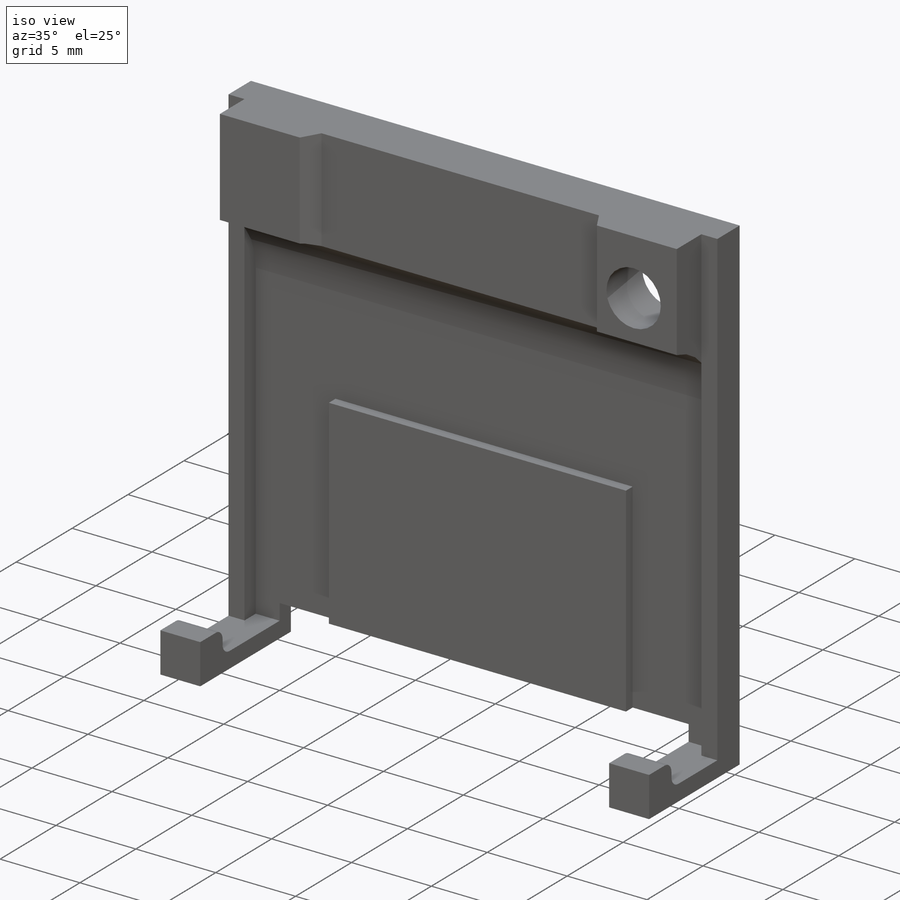
[diagram: iso view]
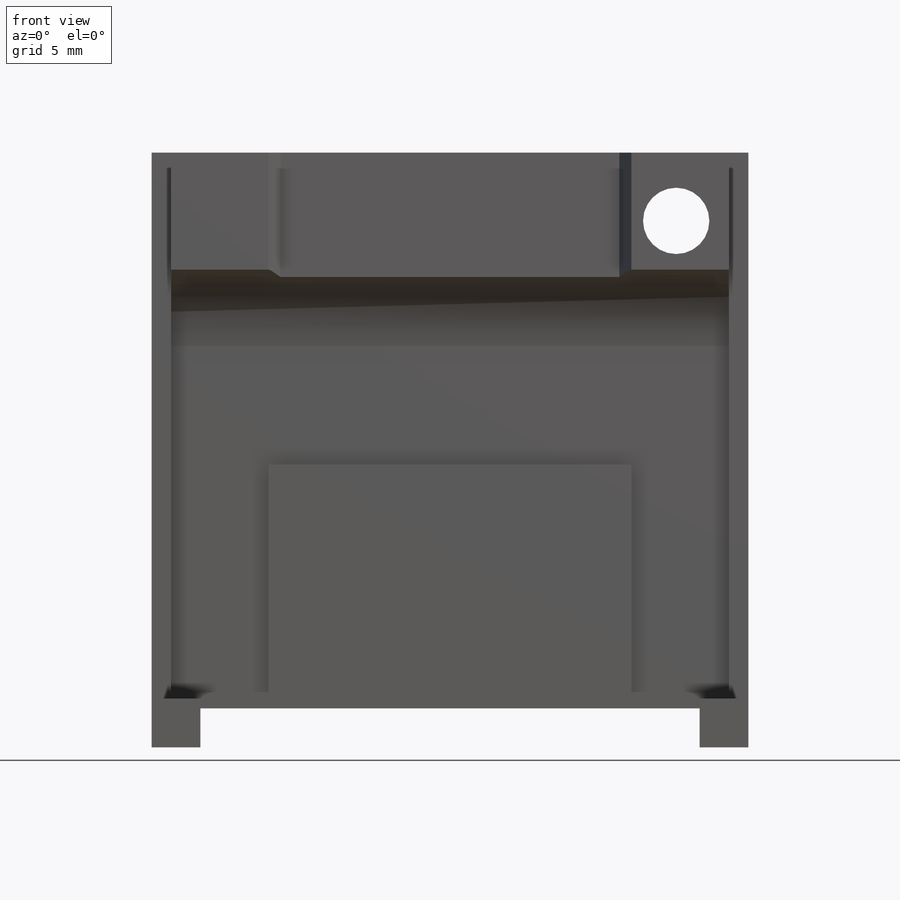
[diagram: front view]
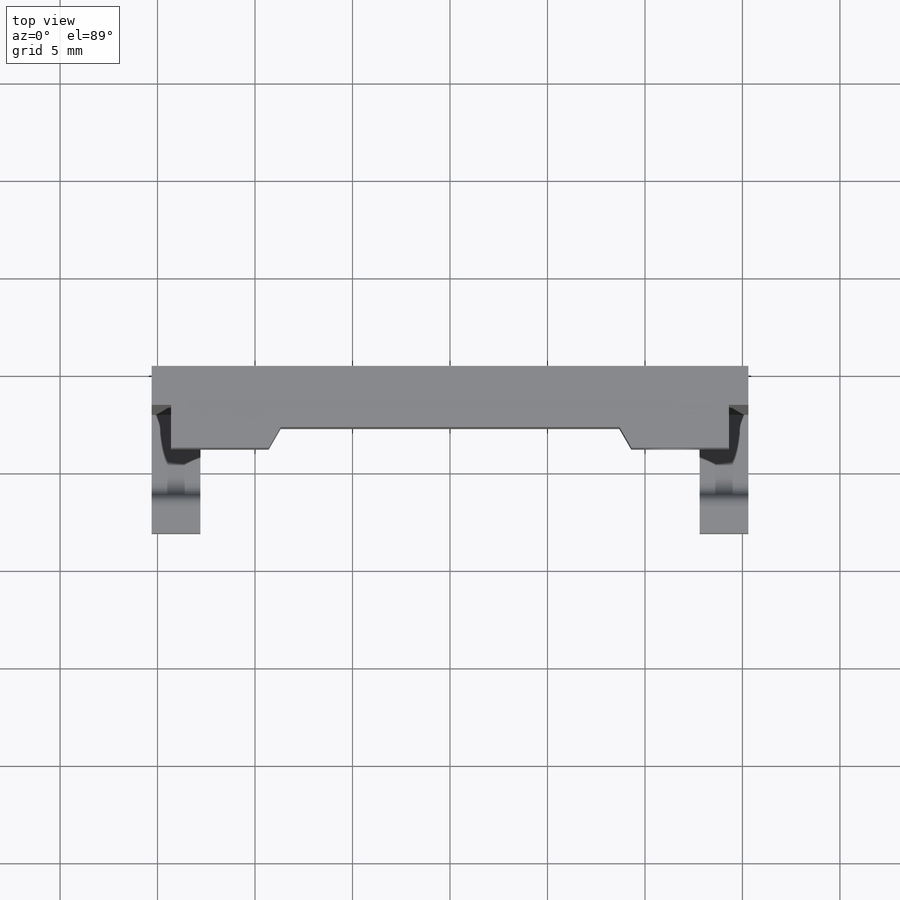
[diagram: top view]
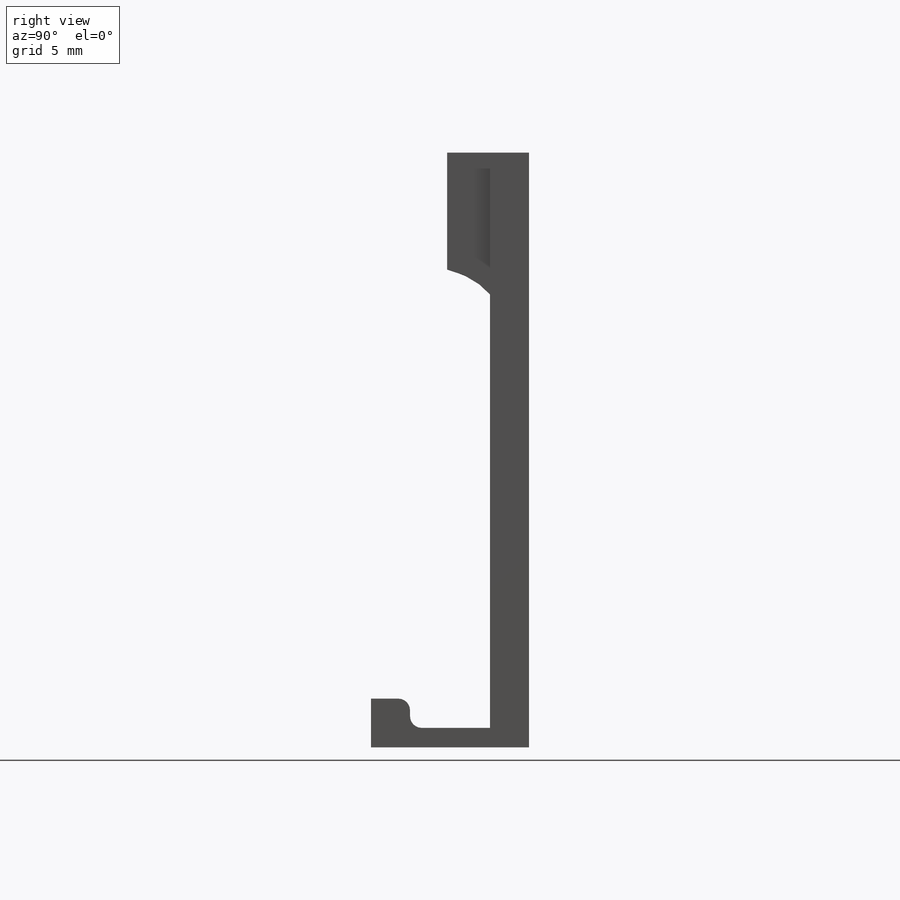
[diagram: right view]
SOLIDWORKS PART (.sldprt)
format: sldprt  version: not decoded by parser v0  size: 342,016 bytes
history: native  units: mm
features: sketch x10, extrude x8, plane x3, cut_extrude x2, fillet x2, material x1, chamfer x1 (+9 scaffold rows collapsed)
feature tree (36):
  scaffold x9  (default folders/planes/origin — collapsed)
  material  "Matériau <non spécifié>"
  plane  "Plan de face"
  plane  "Plan de dessus"
  plane  "Plan de droite"
  sketch  "Esquisse1"  dims[D1=28.6mm D2=16.5mm]
  extrude  "Boss.-Extru.1"  Depth=1mm
  sketch  "Esquisse2"  dims[c1.D1=20.0mm c1.D2=4.0mm c1.D3=~14.464833mm c2.D1=5.0mm]
  extrude  "Boss.-Extru.2"  Depth=0.6mm
  sketch  "Esquisse3"  dims[D1=12.0mm]
  extrude  "Boss.-Extru.3"  Depth=1mm
  sketch  "Esquisse4"  dims[D1=6.0mm]
  extrude  "Boss.-Extru.4"  Depth=3.2mm
  sketch  "Esquisse5"  dims[D1=3.4mm D2=11.0mm D3=7.5mm D4=2.7mm]
  cut_extrude  "Enlèv. mat.-Extru.1"  [1 undecoded]
  fillet  "Congé1"  Radius=4mm
  sketch  "Esquisse6"  dims[D1=1.5mm D2=1.5mm]
  extrude  "Boss.-Extru.5"  Depth=2mm
  sketch  "Esquisse7"  dims[D1=1.0mm D2=1.0mm D3=1.0mm D4=1.0mm]
  extrude  "Boss.-Extru.6"  Depth=7.1mm
  sketch  "Esquisse8"  dims[D1=2.0mm]
  extrude  "Boss.-Extru.7"  Depth=1.5mm
  fillet  "Congé2"  Radius=0.6mm
  sketch  "Esquisse9"  dims[D1=1.0mm D2=1.0mm]
  extrude  "Boss.-Extru.8"  Depth=2mm
  chamfer  "Chanfrein2"  Distance=1mm Angle=45deg
  sketch  "Esquisse10"  dims[c1.D1=5.0mm c1.D2=5.0mm c1.D3=~0.946301mm c2.D3=120.0deg c2.D4=~1.063754mm c3.D4=120.0deg]
  cut_extrude  "Enlèv. mat.-Extru.2"  Depth=10mm
decode coverage: 22 of 23 modeling features carry decoded parameters
note: ~ marks probable driven/reference dimensions
note: 1 parameter value undecoded
note: suppression state not decoded; provenance and decode notes live in map.json
